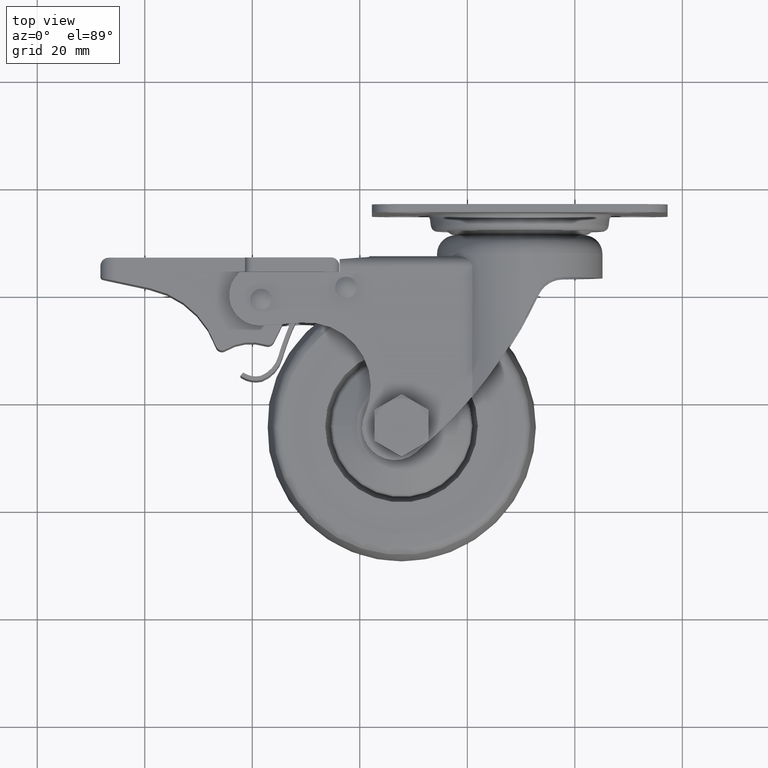
[diagram: clean part render]
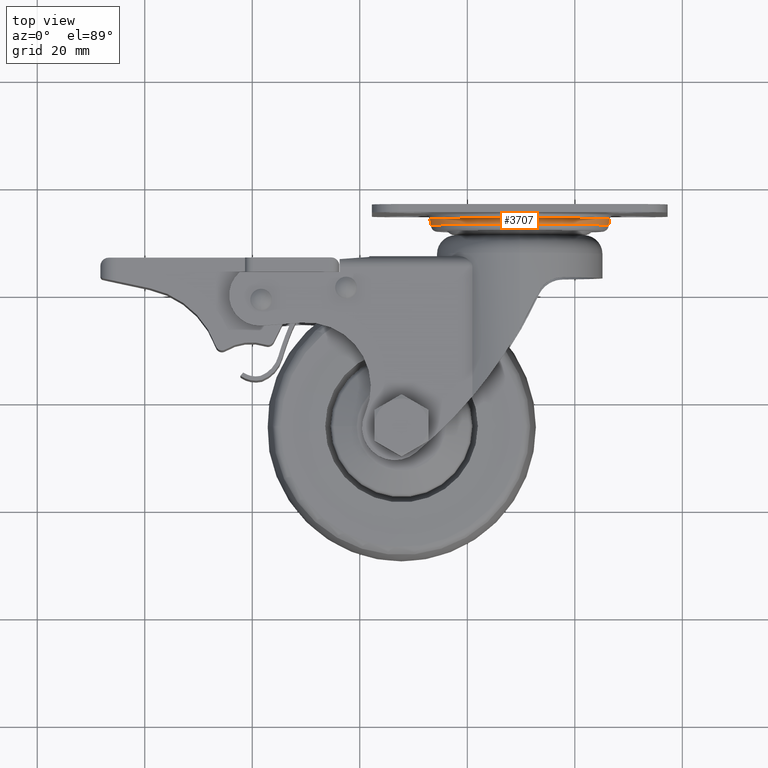
[diagram: same view with one face highlighted and labeled with its STEP entity id]
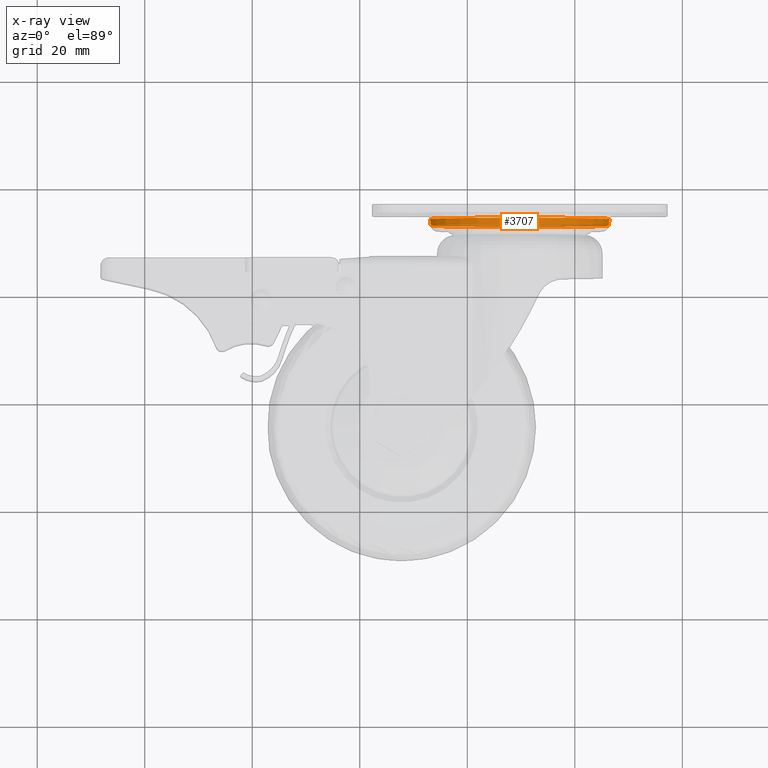
[diagram: x-ray of the same camera — body ghosted, the highlighted face saturated]
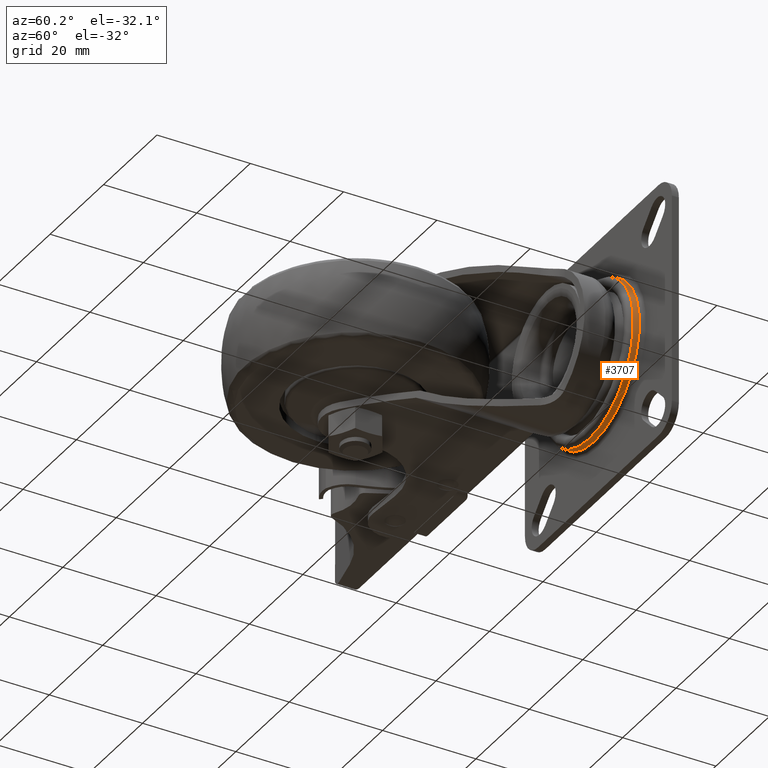
[diagram: same view with one face highlighted and labeled with its STEP entity id]
A machine part, top view. The second image highlights one B-rep face of the part: STEP entity #3707.
The next image is the same camera in x-ray: the body ghosted, the highlighted face saturated — about 27% of this face is hidden behind the body in this view.
A second angle (auxiliary view) of the same face is appended — the face is thin or edge-on in the first view.
In plain terms, the highlighted conical surface has half-angle 7.787 deg.
Its self-contained STEP definition (entity closure, byte-faithful):
#188=CONICAL_SURFACE('',#4297,16.82,0.1359091022);
#450=FACE_OUTER_BOUND('',#709,.T.);
#709=EDGE_LOOP('',(#2948,#2949,#2950,#2951,#2952,#2953));
#984=LINE('',#6438,#1196);
#1196=VECTOR('',#5147,16.82);
#1427=CIRCLE('',#4294,16.82);
#1428=CIRCLE('',#4295,16.82);
#1430=CIRCLE('',#4298,16.66);
#1431=CIRCLE('',#4299,16.66);
#1724=VERTEX_POINT('',#6431);
#1725=VERTEX_POINT('',#6432);
#1726=VERTEX_POINT('',#6437);
#1727=VERTEX_POINT('',#6439);
#2154=EDGE_CURVE('',#1724,#1725,#1427,.T.);
#2155=EDGE_CURVE('',#1725,#1724,#1428,.T.);
#2157=EDGE_CURVE('',#1724,#1726,#984,.T.);
#2158=EDGE_CURVE('',#1727,#1726,#1430,.T.);
#2159=EDGE_CURVE('',#1726,#1727,#1431,.T.);
#2948=ORIENTED_EDGE('',*,*,#2154,.T.);
#2949=ORIENTED_EDGE('',*,*,#2155,.T.);
#2950=ORIENTED_EDGE('',*,*,#2157,.T.);
#2951=ORIENTED_EDGE('',*,*,#2158,.F.);
#2952=ORIENTED_EDGE('',*,*,#2159,.F.);
#2953=ORIENTED_EDGE('',*,*,#2157,.F.);
#3707=ADVANCED_FACE('',(#450),#188,.T.);
#4294=AXIS2_PLACEMENT_3D('',#6433,#5139,#5140);
#4295=AXIS2_PLACEMENT_3D('',#6434,#5141,#5142);
#4297=AXIS2_PLACEMENT_3D('',#6436,#5145,#5146);
#4298=AXIS2_PLACEMENT_3D('',#6440,#5148,#5149);
#4299=AXIS2_PLACEMENT_3D('',#6441,#5150,#5151);
#5139=DIRECTION('center_axis',(0.,-1.,0.));
#5140=DIRECTION('ref_axis',(0.,0.,-1.));
#5141=DIRECTION('center_axis',(0.,-1.,0.));
#5142=DIRECTION('ref_axis',(0.,0.,-1.));
#5145=DIRECTION('center_axis',(0.,1.,0.));
#5146=DIRECTION('ref_axis',(0.,0.,1.));
#5147=DIRECTION('',(1.65928724594592E-17,-0.990778565400063,0.135491085846236));
#5148=DIRECTION('center_axis',(0.,-1.,0.));
#5149=DIRECTION('ref_axis',(0.,0.,-1.));
#5150=DIRECTION('center_axis',(0.,-1.,0.));
#5151=DIRECTION('ref_axis',(0.,0.,-1.));
#6431=CARTESIAN_POINT('',(22.,38.64,-16.82));
#6432=CARTESIAN_POINT('',(22.,38.64,16.82));
#6433=CARTESIAN_POINT('Origin',(22.,38.64,0.));
#6434=CARTESIAN_POINT('Origin',(22.,38.64,0.));
#6436=CARTESIAN_POINT('Origin',(22.,38.64,0.));
#6437=CARTESIAN_POINT('',(22.,37.47,-16.66));
#6438=CARTESIAN_POINT('',(22.,38.64,-16.82));
#6439=CARTESIAN_POINT('',(22.,37.47,16.66));
#6440=CARTESIAN_POINT('Origin',(22.,37.47,0.));
#6441=CARTESIAN_POINT('Origin',(22.,37.47,0.));